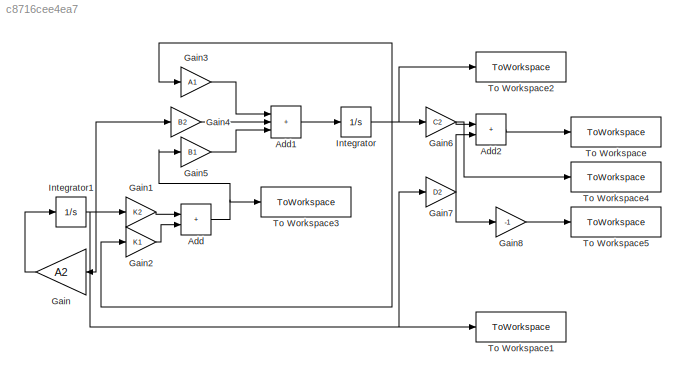
MODEL slx_c8716cee4ea7
KIND model
CONFIG AbsTol = auto
CONFIG EnableMultiTasking = off
CONFIG FixedStep = auto
CONFIG MaxStep = auto
CONFIG MinStep = auto
CONFIG RelTol = 1e-3
CONFIG SampleTimeConstraint = Unconstrained
CONFIG SolverName = VariableStepAuto
CONFIG StartTime = 0.0
CONFIG StopTime = 10
BLOCK [Sum] Add
  IconShape = rectangular
  Ports = [2, 1]
BLOCK [Sum] Add1
  IconShape = rectangular
  Inputs = +++
  Ports = [3, 1]
BLOCK [Sum] Add2
  IconShape = rectangular
  Ports = [2, 1]
BLOCK [Gain] Gain
  Gain = A2
  Multiplication = Matrix(K*u) (u vector)
  NameLocation = top
BLOCK [Gain] Gain1
  Gain = K2
  Multiplication = Matrix(K*u) (u vector)
BLOCK [Gain] Gain2
  Gain = K1
  Multiplication = Matrix(K*u) (u vector)
BLOCK [Gain] Gain3
  Gain = A1
  Multiplication = Matrix(K*u) (u vector)
BLOCK [Gain] Gain4
  Gain = B2
  Multiplication = Matrix(K*u) (u vector)
BLOCK [Gain] Gain5
  Gain = B1
  Multiplication = Matrix(K*u) (u vector)
BLOCK [Gain] Gain6
  Gain = C2
  Multiplication = Matrix(K*u) (u vector)
BLOCK [Gain] Gain7
  Gain = D2
  Multiplication = Matrix(K*u) (u vector)
BLOCK [Gain] Gain8
  Gain = -1
BLOCK [Integrator] Integrator
  InitialCondition = [0;0]
  Ports = [1, 1]
BLOCK [Integrator] Integrator1
  InitialCondition = [0;1;0;1;0;1]
  Ports = [1, 1]
BLOCK [ToWorkspace] To Workspace
  FixptAsFi = on
  MaxDataPoints = inf
  Ports = [1]
  SampleTime = -1
  SaveFormat = Timeseries
  VariableName = z
BLOCK [ToWorkspace] To Workspace1
  FixptAsFi = on
  MaxDataPoints = inf
  Ports = [1]
  SampleTime = -1
  SaveFormat = Timeseries
  VariableName = w
BLOCK [ToWorkspace] To Workspace2
  FixptAsFi = on
  MaxDataPoints = inf
  Ports = [1]
  SampleTime = 0.0001
  SaveFormat = Timeseries
  VariableName = x
BLOCK [ToWorkspace] To Workspace3
  FixptAsFi = on
  MaxDataPoints = inf
  Ports = [1]
  SampleTime = -1
  SaveFormat = Timeseries
  VariableName = u
BLOCK [ToWorkspace] To Workspace4
  FixptAsFi = on
  MaxDataPoints = inf
  Ports = [1]
  SampleTime = -1
  SaveFormat = Timeseries
  VariableName = C2x
BLOCK [ToWorkspace] To Workspace5
  FixptAsFi = on
  MaxDataPoints = inf
  Ports = [1]
  SampleTime = -1
  SaveFormat = Timeseries
  VariableName = D2w
LINE Add1:1 -> Integrator:1
LINE Add2:1 -> To Workspace:1
NET Add:1 -> Gain5:1, To Workspace3:1
LINE Gain1:1 -> Add:1
LINE Gain2:1 -> Add:2
LINE Gain3:1 -> Add1:1
LINE Gain4:1 -> Add1:2
LINE Gain5:1 -> Add1:3
NET Gain6:1 -> Add2:1, To Workspace4:1
NET Gain7:1 -> Add2:2, Gain8:1
LINE Gain8:1 -> To Workspace5:1
LINE Gain:1 -> Integrator1:1
NET Integrator1:1 -> Gain1:1, Gain4:1, Gain7:1, Gain:1, To Workspace1:1
NET Integrator:1 -> Gain2:1, Gain3:1, Gain6:1, To Workspace2:1
note: NET lines group one-source signal fan-out (src -> all destinations, sorted); 1:1 wires keep LINE
